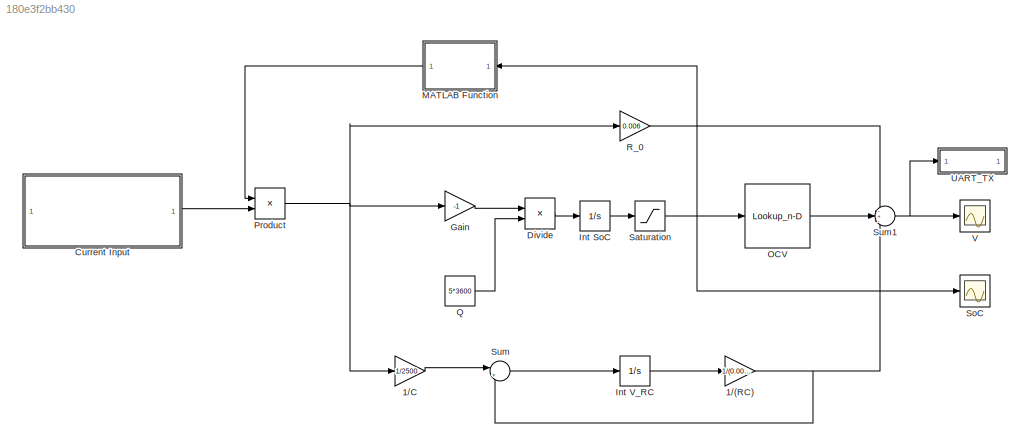
MODEL slx_180e3f2bb430
KIND model
CONFIG AbsTol = auto
CONFIG EnableMultiTasking = off
CONFIG FixedStep = 0.01
CONFIG MaxStep = auto
CONFIG MinStep = auto
CONFIG RelTol = 1e-3
CONFIG SampleTimeConstraint = Unconstrained
CONFIG SolverName = ode4
CONFIG StartTime = 0.0
CONFIG StopTime = 1
BLOCK [Gain] 1//(RC)
  Gain = 1/(0.004*2500)
BLOCK [Gain] 1//C
  Gain = 1/2500
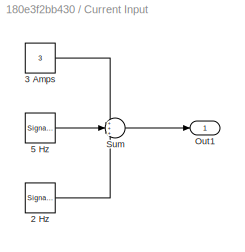
BLOCK [SubSystem] Current Input
BLOCK [SignalGenerator] Current Input/2 Hz
  Amplitude = 0.5
  Frequency = 0.02
  Units = rad/sec
BLOCK [Constant] Current Input/3 Amps
  Value = 3
BLOCK [SignalGenerator] Current Input/5 Hz
  Frequency = 0.01
  Units = rad/sec
BLOCK [Outport] Current Input/Out1
BLOCK [Sum] Current Input/Sum
  Inputs = +++
BLOCK [Product] Divide
  Inputs = */
BLOCK [Gain] Gain
  Gain = -1
BLOCK [Integrator] Int SoC
  InitialCondition = 1
BLOCK [Integrator] Int V_RC
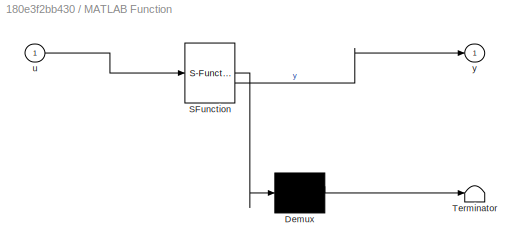
BLOCK [SubSystem] MATLAB Function
  ErrorFcn = Stateflow.Translate.translate
  PermitHierarchicalResolution = ExplicitOnly
  SFBlockType = MATLAB Function
  TreatAsAtomicUnit = on
BLOCK [Demux] MATLAB Function/ Demux 
  Outputs = 1
BLOCK [S-Function] MATLAB Function/ SFunction 
  EnableBusSupport = off
  FunctionName = sf_sfun
  PortCounts = [1 2]
  SFcnIsStateOwnerBlock = off
  SFunctionDeploymentMode = off
  Tag = Stateflow S-Function 2
BLOCK [Terminator] MATLAB Function/ Terminator 
BLOCK [Inport] MATLAB Function/u
BLOCK [Outport] MATLAB Function/y
BLOCK [Lookup_n-D] OCV
  BreakpointsForDimension1 = [0.0 0.1 0.2 0.4 0.6 0.8 1.0]
  InputPortMap = u0
  InternalRulePriority = Speed
  NumberOfTableDimensions = 1
  RndMeth = Simplest
  Table = [3.30 3.55 3.65 3.75 3.85 3.95 4.20]*4
BLOCK [Product] Product
BLOCK [Constant] Q
  Value = 5*3600
BLOCK [Gain] R_0
  Gain = 0.006
BLOCK [Saturate] Saturation
  LowerLimit = 0
  UpperLimit = 1
BLOCK [Scope] SoC
  ActiveDisplayYMaximum = 1.1187500516552589
  ActiveDisplayYMinimum = -0.068750464897329611
  DataLoggingVariableName = ScopeData1
  Floating = off
  GraphicalSettings = {"Style":{"BackgroundColor":[0.12941176470588237,0.12941176470588237,0.12941176470588237],"AxesColor":[0.07058823529411765,0.07058823529411765,0.07058823529411765],"LabelsColor":[0.8509803921568627,0.8509803921568627,0.8509803921568627],"PreserveColors":false,"Visible":[true],"LineStyle":["-"],"LineWidth":[1.5],"BarWidth":[0.9],"LineColor":["auto"],"LineFaceAlpha":[1],"LineEdgeAlpha":[1],"Marker":...<+1996ch>
  MultipleDisplayCache = [{"MaxYLimMag":1.1187500516552589,"MaxYLimReal":1.1187500516552589,"MinYLimMag":0,"MinYLimReal":-0.068750464897329611,"PlotAsMagnitudePhase":false,"ShowGrid":true,"ShowLegend":false,"Title":"%<SignalLabel>","YLabel":""}]
  NumInputPorts = 1
  ScopeFrameLocation = window
  WasSavedAsWebScope = on
  WindowPosition = [258.000000,500.000000,560.000000,420.000000,]
BLOCK [Sum] Sum
  Inputs = |+-
BLOCK [Sum] Sum1
  Inputs = -+-
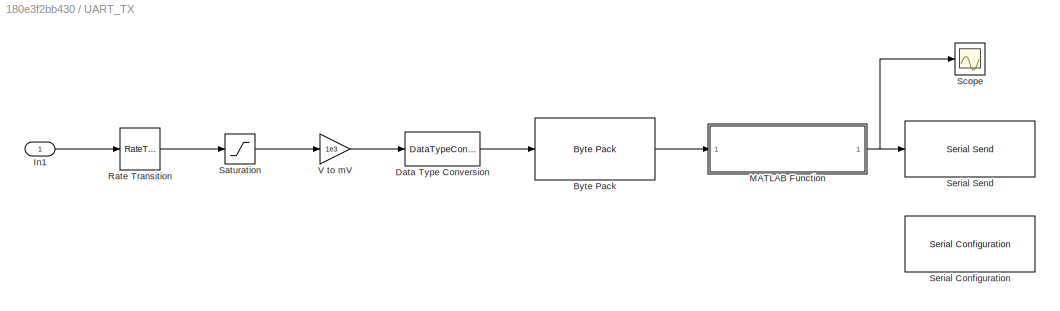
BLOCK [SubSystem] UART_TX
BLOCK [Reference] UART_TX/Byte Pack  REF=svdutilitieslib/Byte Pack
  LibrarySourceBlock = c2000lib/Target Communication/Byte Pack
  SourceBlock = svdutilitieslib/Byte Pack
  SourceType = Byte pack
BLOCK [DataTypeConversion] UART_TX/Data Type Conversion
  OutDataTypeStr = uint16
  RndMeth = Floor
  SaturateOnIntegerOverflow = off
BLOCK [Inport] UART_TX/In1
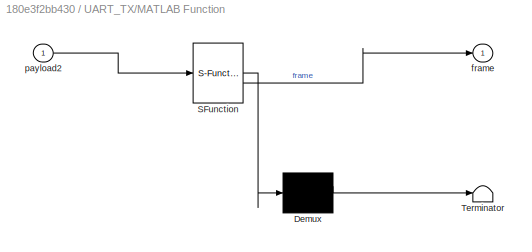
BLOCK [SubSystem] UART_TX/MATLAB Function
  ErrorFcn = Stateflow.Translate.translate
  PermitHierarchicalResolution = ExplicitOnly
  SFBlockType = MATLAB Function
  TreatAsAtomicUnit = on
BLOCK [Demux] UART_TX/MATLAB Function/ Demux 
  Outputs = 1
BLOCK [S-Function] UART_TX/MATLAB Function/ SFunction 
  EnableBusSupport = off
  FunctionName = sf_sfun
  PortCounts = [1 2]
  SFcnIsStateOwnerBlock = off
  SFunctionDeploymentMode = off
  Tag = Stateflow S-Function 1
BLOCK [Terminator] UART_TX/MATLAB Function/ Terminator 
BLOCK [Outport] UART_TX/MATLAB Function/frame
BLOCK [Inport] UART_TX/MATLAB Function/payload2
BLOCK [RateTransition] UART_TX/Rate Transition
  OutPortSampleTime = 0.1
BLOCK [Saturate] UART_TX/Saturation
  LowerLimit = 0
  UpperLimit = 20
BLOCK [Scope] UART_TX/Scope
  ActiveDisplayYMaximum = 286.625
  ActiveDisplayYMinimum = -29.624999999999993
  DataLoggingVariableName = ScopeData2
  Floating = off
  GraphicalSettings = {"AxesScalingProperties":{"AlignXAxis":"Center","AlignYAxis":"Center","AutoScaleXAxisLimits":false,"AxesScaling":"Manual","AxesScalingNumUpdates":10,"ExpandOnly":true,"ScaleAxesLimitsAtStop":false,"XAxisDataRange":100,"YAxisDataRange":80},"DisplayProperties":{"ColorOrder":["auto","auto","auto","auto","auto","auto","auto","auto","auto","auto","auto","auto","auto","auto","auto","auto","auto","auto",...<+2661ch>
  MultipleDisplayCache = [{"MaxYLimMag":286.625,"MaxYLimReal":286.625,"MinYLimMag":0,"MinYLimReal":-29.624999999999993,"PlotAsMagnitudePhase":false,"ShowGrid":true,"ShowLegend":false,"Title":"%<SignalLabel>","YLabel":""}]
  NumInputPorts = 1
  ScopeFrameLocation = window
  WasSavedAsWebScope = on
  WindowPosition = [840.000000,341.000000,560.000000,420.000000,]
BLOCK [Reference] UART_TX/Serial Configuration  REF=instrumentseriallib/Serial Configuration
  LibrarySourceBlock = c2000lib/Host Communication/Serial Configuration
  Priority = -200000
  SourceBlock = instrumentseriallib/Serial Configuration
  SourceType = system.SerialConfiguration
BLOCK [Reference] UART_TX/Serial Send  REF=instrumentseriallib/Serial Send
  LibrarySourceBlock = c2000lib/Host Communication/Serial Send
  Priority = 1
  SourceBlock = instrumentseriallib/Serial Send
  SourceType = system.SerialSend
BLOCK [Gain] UART_TX/V to mV
  Gain = 1e3
BLOCK [Scope] V
  ActiveDisplayYMaximum = 17.170237684553978
  ActiveDisplayYMinimum = 13.287860839014217
  Floating = off
  GraphicalSettings = {"Style":{"BackgroundColor":[0.12941176470588237,0.12941176470588237,0.12941176470588237],"AxesColor":[0.07058823529411765,0.07058823529411765,0.07058823529411765],"LabelsColor":[0.8509803921568627,0.8509803921568627,0.8509803921568627],"PreserveColors":false,"Visible":[true],"LineStyle":["-"],"LineWidth":[1.5],"BarWidth":[0.9],"LineColor":["auto"],"LineFaceAlpha":[1],"LineEdgeAlpha":[1],"Marker":...<+2016ch>
  MultipleDisplayCache = [{"MaxYLimMag":17.170237684553978,"MaxYLimReal":17.170237684553978,"MinYLimMag":13.287860839014217,"MinYLimReal":13.287860839014217,"PlotAsMagnitudePhase":false,"ShowGrid":true,"ShowLegend":false,"Title":"%<SignalLabel>","YLabel":""}]
  NumInputPorts = 1
  ScopeFrameLocation = window
  WasSavedAsWebScope = on
  WindowPosition = [940.000000,374.000000,560.000000,420.000000,]
NET 1//(RC):1 -> Sum1:3, Sum:2
LINE 1//C:1 -> Sum:1
LINE Current Input/2 Hz:1 -> Current Input/Sum:3
LINE Current Input/3 Amps:1 -> Current Input/Sum:1
LINE Current Input/5 Hz:1 -> Current Input/Sum:2
LINE Current Input/Sum:1 -> Current Input/Out1:1
LINE Current Input:1 -> Product:2
LINE Divide:1 -> Int SoC:1
LINE Gain:1 -> Divide:1
LINE Int SoC:1 -> Saturation:1
LINE Int V_RC:1 -> 1//(RC):1
LINE MATLAB Function:1 -> Product:1
LINE OCV:1 -> Sum1:2
NET Product:1 -> 1//C:1, Gain:1, R_0:1
LINE Q:1 -> Divide:2
LINE R_0:1 -> Sum1:1
NET Saturation:1 -> MATLAB Function:1, OCV:1, SoC:1
NET Sum1:1 -> UART_TX:1, V:1
LINE Sum:1 -> Int V_RC:1
LINE UART_TX/Byte Pack:1 -> UART_TX/MATLAB Function:1
LINE UART_TX/Data Type Conversion:1 -> UART_TX/Byte Pack:1
LINE UART_TX/In1:1 -> UART_TX/Rate Transition:1
NET UART_TX/MATLAB Function:1 -> UART_TX/Scope:1, UART_TX/Serial Send:1
LINE UART_TX/Rate Transition:1 -> UART_TX/Saturation:1
LINE UART_TX/Saturation:1 -> UART_TX/V to mV:1
LINE UART_TX/V to mV:1 -> UART_TX/Data Type Conversion:1
note: NET lines group one-source signal fan-out (src -> all destinations, sorted); 1:1 wires keep LINE
CHART MATLAB Function states=1 transitions=1
  STATE_LABEL 'eML_blk_kernel()'
  STATE_LABEL 'SCRIPT:\nfunction y = fcn(u)\n\nif u < 0.05\n    y = 0;\nelse\n    y = 1;\nend\n'
CHART UART_TX/MATLAB Function states=1 transitions=1
  STATE_LABEL 'eML_blk_kernel()'
  STATE_LABEL "SCRIPT:\nfunction frame = make_v_frame(payload2)\n% payload2: uint8[2] from Byte Pack (little-endian)\n% frame: uint8[7]\n\nhdr = uint8([170 85 16 2]);      % AA 55 ID=0x10 LEN=2\nraw = [hdr payload2(:)'];        % 1x6 bytes\n\nchk = uint8(0);\nfor k = 1:numel(raw)\n    chk = bitxor(chk, raw(k));\nend\n\nframe = [raw chk];               % 1x7 bytes\nend"
CHART  states=0 transitions=0
CHART  states=0 transitions=0
